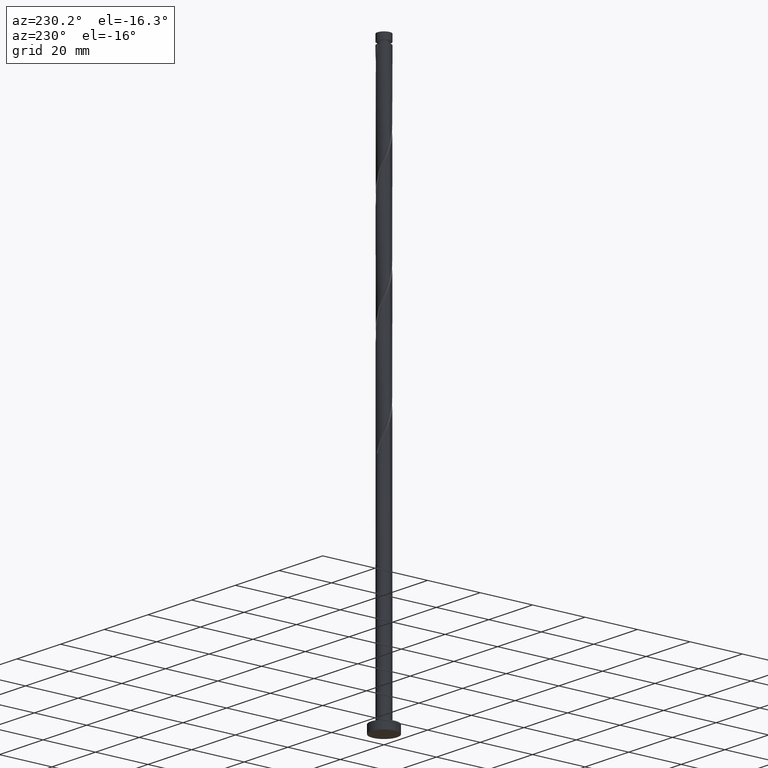
[diagram: clean part render]
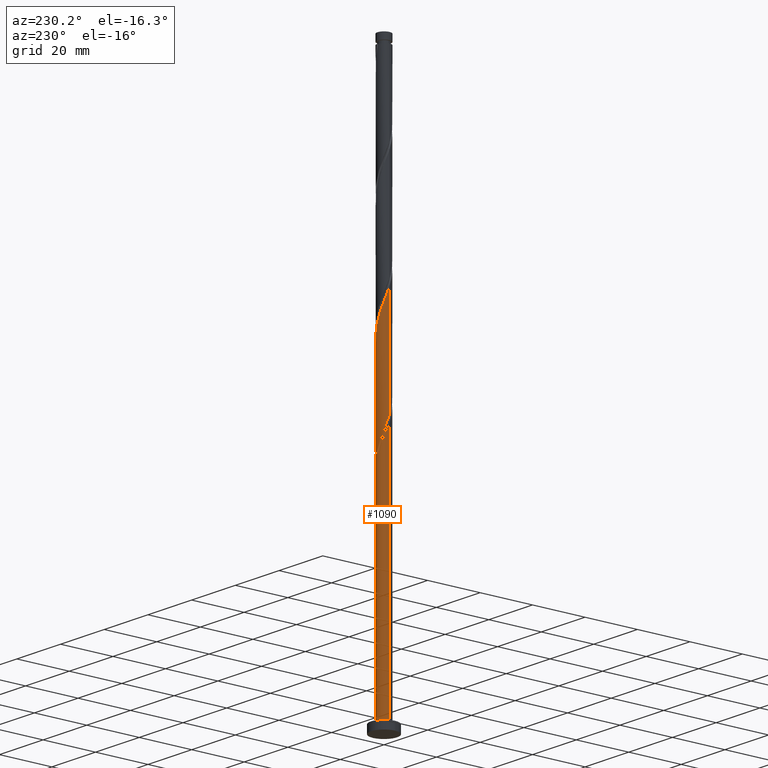
[diagram: same view with one face highlighted and labeled with its STEP entity id]
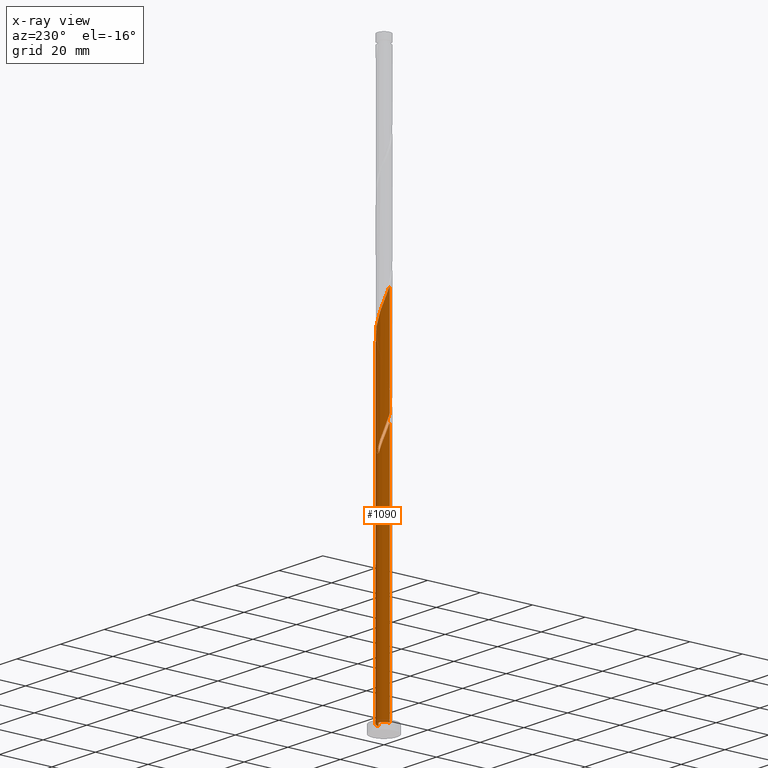
[diagram: x-ray of the same camera — body ghosted, the highlighted face saturated]
A machine part, auxiliary view. The second image highlights one B-rep face of the part: STEP entity #1090.
The next image is the same camera in x-ray: the body ghosted, the highlighted face saturated — about 0% of this face is hidden behind the body in this view.
In plain terms, the highlighted cylindrical surface (edge-blend (fillet) strip) has radius 2.5 mm, axis along (-0, -0, -1).
Its self-contained STEP definition (entity closure, byte-faithful):
#38 = CARTESIAN_POINT ( 'NONE',  ( -2.500000000000000000, 0.000000000000000000, 213.8100000000000023 ) ) ;
#48 = EDGE_CURVE ( 'NONE', #545, #1415, #388, .T. ) ;
#55 = CARTESIAN_POINT ( 'NONE',  ( -1.997029908174711599, 1.503951975914030292, 131.7754122369871368 ) ) ;
#78 = ORIENTED_EDGE ( 'NONE', *, *, #1500, .F. ) ;
#86 = VERTEX_POINT ( 'NONE', #677 ) ;
#96 = DIRECTION ( 'NONE',  ( -0.000000000000000000, -0.000000000000000000, -1.000000000000000000 ) ) ;
#111 = CARTESIAN_POINT ( 'NONE',  ( 2.500000000000000000, 3.061616997868383141E-16, 213.8100000000000023 ) ) ;
#185 = LINE ( 'NONE', #38, #742 ) ;
#191 = CARTESIAN_POINT ( 'NONE',  ( 1.733701828209132989, 1.801187933244147610, 120.5574635190383503 ) ) ;
#194 = ORIENTED_EDGE ( 'NONE', *, *, #845, .F. ) ;
#219 = CARTESIAN_POINT ( 'NONE',  ( 1.514998017198625702, 2.011697447541358930, 121.3587455703204512 ) ) ;
#221 = CYLINDRICAL_SURFACE ( 'NONE', #1386, 2.500000000000000000 ) ;
#228 = CARTESIAN_POINT ( 'NONE',  ( 2.500000000000003553, 0.09943282584191580342, 115.4873023023692014 ) ) ;
#243 = CARTESIAN_POINT ( 'NONE',  ( 0.4974937185533120365, 2.450000000000000178, 85.30105326262813037 ) ) ;
#257 = CARTESIAN_POINT ( 'NONE',  ( -0.9895442172117500101, 2.315803932707376944, 89.30746351903837876 ) ) ;
#272 = CARTESIAN_POINT ( 'NONE',  ( 0.000000000000000000, 0.000000000000000000, 3.000000000000000000 ) ) ;
#275 = CARTESIAN_POINT ( 'NONE',  ( 0.2000098596587730204, 2.510406673947360279, 86.10233531391018857 ) ) ;
#317 = CARTESIAN_POINT ( 'NONE',  ( 0.4974937185533120365, 2.450000000000000178, 85.30105326262813037 ) ) ;
#328 = CARTESIAN_POINT ( 'NONE',  ( 0.000000000000000000, 0.000000000000000000, 85.30105326262813037 ) ) ;
#334 = CARTESIAN_POINT ( 'NONE',  ( -1.814417076588193956, 1.746435307918773105, 130.9741301857050644 ) ) ;
#338 = VECTOR ( 'NONE', #1514, 1000.000000000000000 ) ;
#343 = CARTESIAN_POINT ( 'NONE',  ( -2.418195489578345292, 0.7031900075677495199, 134.1792583908332972 ) ) ;
#351 = CARTESIAN_POINT ( 'NONE',  ( 2.467994458320926565, 0.5011476491587921744, 116.5510532626281446 ) ) ;
#361 = CARTESIAN_POINT ( 'NONE',  ( -0.4974937185533109263, 2.450000000000001954, 126.9677199292947591 ) ) ;
#363 = CARTESIAN_POINT ( 'NONE',  ( -0.7949775774478503587, 2.389593326052643185, 86.10233531391018857 ) ) ;
#375 = CARTESIAN_POINT ( 'NONE',  ( 2.500000000000003109, 1.353512437262433092E-15, 115.2231313867362701 ) ) ;
#388 = LINE ( 'NONE', #111, #338 ) ;
#396 = ORIENTED_EDGE ( 'NONE', *, *, #48, .T. ) ;
#474 = CARTESIAN_POINT ( 'NONE',  ( -2.500000000000004885, 0.2031410963426116267, 135.5167639827213009 ) ) ;
#483 = CARTESIAN_POINT ( 'NONE',  ( 2.500000000000003109, 1.353512437262433289E-15, 115.2231313867362701 ) ) ;
#486 = CARTESIAN_POINT ( 'NONE',  ( -2.500000000000003109, -8.637054502972983423E-15, 136.0564647200696413 ) ) ;
#495 = DIRECTION ( 'NONE',  ( -1.000000000000000000, 0.000000000000000000, 0.000000000000000000 ) ) ;
#497 = DIRECTION ( 'NONE',  ( -0.000000000000000000, -0.000000000000000000, -1.000000000000000000 ) ) ;
#501 = CARTESIAN_POINT ( 'NONE',  ( 2.500000000000000000, 3.061616997868383141E-16, 3.000000000000000000 ) ) ;
#508 =( BOUNDED_CURVE ( )  B_SPLINE_CURVE ( 2, ( #483, #228, #780, #351, #939, #1778, #1758, #1045, #191, #219, #1768, #1063, #1212, #662, #1629, #1360, #361, #1186, #900, #1320, #1493, #334, #55, #789, #1348, #343, #1601, #474, #912 ),
 .UNSPECIFIED., .F., .T. ) 
 B_SPLINE_CURVE_WITH_KNOTS ( ( 3, 2, 2, 2, 2, 2, 2, 2, 2, 2, 2, 2, 2, 2, 3 ),
 ( 0.1795271625973831608, 0.1826923076923077094, 0.1923076923076922906, 0.2019230769230768718, 0.2115384615384615641, 0.2211538461538461453, 0.2307692307692307265, 0.2403846153846154188, 0.2500000000000000000, 0.2596153846153845812, 0.2692307692307692735, 0.2788461538461538547, 0.2884615384615384359, 0.2980769230769231282, 0.3045271625973833829 ),
 .UNSPECIFIED. ) 
 CURVE ( )  GEOMETRIC_REPRESENTATION_ITEM ( )  RATIONAL_B_SPLINE_CURVE ( ( 0.9061636035682910650, 0.9069090390690797143, 0.9090909090909364831, 0.9024626128164396910, 0.9090909090909364831, 0.9024626128164396910, 0.9090909090909364831, 0.9024626128164396910, 0.9090909090909364831, 0.9024626128164396910, 0.9090909090909364831, 0.9024626128164396910, 0.9090909090909364831, 0.9024626128164396910, 0.9090909090909364831, 0.9024626128164396910, 0.9090909090909364831, 0.9024626128164396910, 0.9090909090909364831, 0.9024626128164396910, 0.9090909090909364831, 0.9024626128164396910, 0.9090909090909364831, 0.9024626128164396910, 0.9090909090909364831, 0.9024626128164396910, 0.9090909090909364831, 0.9046444828382962378, 0.9061636035682911761 ) ) 
 REPRESENTATION_ITEM ( '' )  );
#516 = CARTESIAN_POINT ( 'NONE',  ( -1.069360832754713719, 2.259749412959357162, 86.90361736519223257 ) ) ;
#544 = EDGE_CURVE ( 'NONE', #86, #1613, #1625, .T. ) ;
#545 = VERTEX_POINT ( 'NONE', #375 ) ;
#568 = ORIENTED_EDGE ( 'NONE', *, *, #1667, .T. ) ;
#662 = CARTESIAN_POINT ( 'NONE',  ( 0.4065817041674140153, 2.485324310909244883, 124.5638737754486414 ) ) ;
#676 = VERTEX_POINT ( 'NONE', #317 ) ;
#677 = CARTESIAN_POINT ( 'NONE',  ( -2.500000000000002665, 5.301880210050082454E-15, 94.38979805340289886 ) ) ;
#679 = CARTESIAN_POINT ( 'NONE',  ( -2.500000000000000000, 0.09943282584192589257, 96.78147088955371657 ) ) ;
#680 = AXIS2_PLACEMENT_3D ( 'NONE', #328, #1572, #1742 ) ;
#687 = VERTEX_POINT ( 'NONE', #1180 ) ;
#710 = EDGE_CURVE ( 'NONE', #1321, #676, #1032, .T. ) ;
#731 = DIRECTION ( 'NONE',  ( -0.000000000000000000, -0.000000000000000000, -1.000000000000000000 ) ) ;
#742 = VECTOR ( 'NONE', #731, 1000.000000000000000 ) ;
#780 = CARTESIAN_POINT ( 'NONE',  ( 2.492102982822526958, 0.1985515625903690184, 115.7497712113460580 ) ) ;
#789 = CARTESIAN_POINT ( 'NONE',  ( -2.179642739761231240, 1.261468643909288145, 132.5766942882691808 ) ) ;
#791 = CARTESIAN_POINT ( 'NONE',  ( 0.000000000000000000, 0.000000000000000000, 213.8100000000000023 ) ) ;
#802 = CARTESIAN_POINT ( 'NONE',  ( -1.997029908174711599, 1.503951975914030292, 90.10874557032042276 ) ) ;
#819 = CARTESIAN_POINT ( 'NONE',  ( -2.492102982822524293, 0.1985515625903708781, 96.51900198057687419 ) ) ;
#845 = EDGE_CURVE ( 'NONE', #1124, #687, #185, .T. ) ;
#900 = CARTESIAN_POINT ( 'NONE',  ( -1.069360832754713719, 2.259749412959357162, 128.5702840318588471 ) ) ;
#912 = CARTESIAN_POINT ( 'NONE',  ( -2.500000000000003109, -8.637054502972983423E-15, 136.0564647200696413 ) ) ;
#921 = CARTESIAN_POINT ( 'NONE',  ( -2.500000000000000000, 0.000000000000000000, 3.000000000000000000 ) ) ;
#934 = CARTESIAN_POINT ( 'NONE',  ( -0.4974937185533110373, 2.450000000000003286, 85.30105326262813037 ) ) ;
#939 = CARTESIAN_POINT ( 'NONE',  ( 2.372170500257943182, 0.7891812958414519130, 117.3523353139101459 ) ) ;
#1002 = CARTESIAN_POINT ( 'NONE',  ( -0.4974937185533110373, 2.450000000000003286, 85.30105326262813037 ) ) ;
#1027 = ORIENTED_EDGE ( 'NONE', *, *, #1043, .F. ) ;
#1032 = CIRCLE ( 'NONE', #680, 2.500000000000000000 ) ;
#1043 = EDGE_CURVE ( 'NONE', #1321, #86, #1375, .T. ) ;
#1045 = CARTESIAN_POINT ( 'NONE',  ( 1.952405639219643385, 1.590678418946935624, 119.7561814677563490 ) ) ;
#1063 = CARTESIAN_POINT ( 'NONE',  ( 0.9895442172117524526, 2.315803932707379165, 122.9613096728845534 ) ) ;
#1066 = CARTESIAN_POINT ( 'NONE',  ( -1.579080582324886128, 1.938170403892422122, 88.50618146775632056 ) ) ;
#1067 = ORIENTED_EDGE ( 'NONE', *, *, #1245, .F. ) ;
#1076 = CARTESIAN_POINT ( 'NONE',  ( -2.298919114669788488, 0.9823293257385184996, 91.71130967288452496 ) ) ;
#1090 = ADVANCED_FACE ( 'NONE', ( #1214 ), #221, .T. ) ;
#1096 = CARTESIAN_POINT ( 'NONE',  ( -0.1032859222543195260, 2.497865492428299916, 86.90361736519227520 ) ) ;
#1111 = CARTESIAN_POINT ( 'NONE',  ( -1.952405639219638500, 1.590678418946935180, 92.51259172416659737 ) ) ;
#1124 = VERTEX_POINT ( 'NONE', #486 ) ;
#1131 = CARTESIAN_POINT ( 'NONE',  ( -2.372170500257940073, 0.7891812958414539114, 94.91643787801277199 ) ) ;
#1180 = CARTESIAN_POINT ( 'NONE',  ( -2.500000000000000000, 2.624767212591805226E-15, 97.04564180518667627 ) ) ;
#1186 = CARTESIAN_POINT ( 'NONE',  ( -0.7949775774478503587, 2.389593326052643185, 127.7690019805768316 ) ) ;
#1197 = CARTESIAN_POINT ( 'NONE',  ( -1.343744088061578745, 2.129905499866072471, 87.70489941647430499 ) ) ;
#1212 = CARTESIAN_POINT ( 'NONE',  ( 0.6980629606895842887, 2.400564121808310691, 123.7625917241665690 ) ) ;
#1214 = FACE_OUTER_BOUND ( 'NONE', #1247, .T. ) ;
#1245 = EDGE_CURVE ( 'NONE', #687, #676, #1565, .T. ) ;
#1247 = EDGE_LOOP ( 'NONE', ( #78, #396, #568, #1447, #1027, #1710, #1067, #194 ) ) ;
#1249 = CARTESIAN_POINT ( 'NONE',  ( -2.500000000000000444, 2.624767212591805226E-15, 97.04564180518667627 ) ) ;
#1271 = CARTESIAN_POINT ( 'NONE',  ( -2.114376090707298150, 1.333946680735525359, 93.31387377544862716 ) ) ;
#1320 = CARTESIAN_POINT ( 'NONE',  ( -1.343744088061578745, 2.129905499866072471, 129.3715660831409480 ) ) ;
#1321 = VERTEX_POINT ( 'NONE', #1002 ) ;
#1333 = CARTESIAN_POINT ( 'NONE',  ( -1.814417076588193956, 1.746435307918773105, 89.30746351903837876 ) ) ;
#1348 = CARTESIAN_POINT ( 'NONE',  ( -2.298919114669788488, 0.9823293257385184996, 133.3779763395511679 ) ) ;
#1360 = CARTESIAN_POINT ( 'NONE',  ( -0.2000098596587715771, 2.510406673947364276, 126.1664378780127720 ) ) ;
#1375 =( BOUNDED_CURVE ( )  B_SPLINE_CURVE ( 2, ( #934, #363, #516, #1197, #1066, #1333, #802, #1622, #1076, #1752, #1488, #1631, #1761 ),
 .UNSPECIFIED., .F., .T. ) 
 B_SPLINE_CURVE_WITH_KNOTS ( ( 3, 2, 2, 2, 2, 2, 3 ),
 ( 0.000000000000000000, 0.009615384615384581224, 0.01923076923076927347, 0.02884615384615385469, 0.03846153846153843592, 0.04807692307692312816, 0.05452716259738315391 ),
 .UNSPECIFIED. ) 
 CURVE ( )  GEOMETRIC_REPRESENTATION_ITEM ( )  RATIONAL_B_SPLINE_CURVE ( ( 0.9090909090909364831, 0.9024626128164396910, 0.9090909090909364831, 0.9024626128164396910, 0.9090909090909364831, 0.9024626128164396910, 0.9090909090909364831, 0.9024626128164396910, 0.9090909090909364831, 0.9024626128164396910, 0.9090909090909364831, 0.9046444828382964598, 0.9061636035682911761 ) ) 
 REPRESENTATION_ITEM ( '' )  );
#1382 = CARTESIAN_POINT ( 'NONE',  ( -1.514998017198621261, 2.011697447541358486, 90.91002762160245254 ) ) ;
#1386 = AXIS2_PLACEMENT_3D ( 'NONE', #791, #96, #495 ) ;
#1392 = CARTESIAN_POINT ( 'NONE',  ( -0.6980629606895811801, 2.400564121808308471, 88.50618146775634898 ) ) ;
#1415 = VERTEX_POINT ( 'NONE', #501 ) ;
#1447 = ORIENTED_EDGE ( 'NONE', *, *, #544, .F. ) ;
#1451 = CIRCLE ( 'NONE', #1511, 2.500000000000000000 ) ;
#1488 = CARTESIAN_POINT ( 'NONE',  ( -2.467203498451236765, 0.4036172657729010793, 93.31387377544862716 ) ) ;
#1493 = CARTESIAN_POINT ( 'NONE',  ( -1.579080582324886128, 1.938170403892422122, 130.1728481344229920 ) ) ;
#1500 = EDGE_CURVE ( 'NONE', #545, #1124, #508, .T. ) ;
#1508 = VECTOR ( 'NONE', #497, 1000.000000000000000 ) ;
#1511 = AXIS2_PLACEMENT_3D ( 'NONE', #272, #1529, #1664 ) ;
#1514 = DIRECTION ( 'NONE',  ( -0.000000000000000000, -0.000000000000000000, -1.000000000000000000 ) ) ;
#1516 = CARTESIAN_POINT ( 'NONE',  ( -1.252271117205185469, 2.163750690124368159, 90.10874557032045118 ) ) ;
#1518 = CARTESIAN_POINT ( 'NONE',  ( -2.500000000000000000, 0.000000000000000000, 213.8100000000000023 ) ) ;
#1529 = DIRECTION ( 'NONE',  ( 0.000000000000000000, 0.000000000000000000, 1.000000000000000000 ) ) ;
#1532 = CARTESIAN_POINT ( 'NONE',  ( -2.276346542194957134, 1.077214942524114649, 94.11515582673068536 ) ) ;
#1565 =( BOUNDED_CURVE ( )  B_SPLINE_CURVE ( 2, ( #1249, #679, #819, #1686, #1131, #1532, #1271, #1111, #1694, #1382, #1516, #257, #1392, #1808, #1096, #275, #243 ),
 .UNSPECIFIED., .F., .T. ) 
 B_SPLINE_CURVE_WITH_KNOTS ( ( 3, 2, 2, 2, 2, 2, 2, 2, 3 ),
 ( 0.9295271625973834384, 0.9326923076923077094, 0.9423076923076922906, 0.9519230769230768718, 0.9615384615384615641, 0.9711538461538461453, 0.9807692307692307265, 0.9903846153846154188, 1.000000000000000000 ),
 .UNSPECIFIED. ) 
 CURVE ( )  GEOMETRIC_REPRESENTATION_ITEM ( )  RATIONAL_B_SPLINE_CURVE ( ( 0.9061636035682858470, 0.9069090390690746073, 0.9090909090909310430, 0.9024626128164345840, 0.9090909090909310430, 0.9024626128164345840, 0.9090909090909310430, 0.9024626128164345840, 0.9090909090909310430, 0.9024626128164345840, 0.9090909090909310430, 0.9024626128164345840, 0.9090909090909310430, 0.9024626128164345840, 0.9090909090909310430, 0.9024626128164345840, 0.9090909090909310430 ) ) 
 REPRESENTATION_ITEM ( '' )  );
#1572 = DIRECTION ( 'NONE',  ( 0.000000000000000000, -0.000000000000000000, -1.000000000000000000 ) ) ;
#1601 = CARTESIAN_POINT ( 'NONE',  ( -2.467203498451236765, 0.4036172657729010793, 134.9805404421153128 ) ) ;
#1613 = VERTEX_POINT ( 'NONE', #921 ) ;
#1622 = CARTESIAN_POINT ( 'NONE',  ( -2.179642739761231240, 1.261468643909288145, 90.91002762160249517 ) ) ;
#1625 = LINE ( 'NONE', #1518, #1508 ) ;
#1629 = CARTESIAN_POINT ( 'NONE',  ( 0.1032859222543222460, 2.497865492428302137, 125.3651558267306569 ) ) ;
#1631 = CARTESIAN_POINT ( 'NONE',  ( -2.500000000000002665, 0.2031410963426187877, 93.85009731605460104 ) ) ;
#1664 = DIRECTION ( 'NONE',  ( 1.000000000000000000, 0.000000000000000000, 0.000000000000000000 ) ) ;
#1667 = EDGE_CURVE ( 'NONE', #1415, #1613, #1451, .T. ) ;
#1686 = CARTESIAN_POINT ( 'NONE',  ( -2.467994458320922568, 0.5011476491587923965, 95.71771992929477335 ) ) ;
#1694 = CARTESIAN_POINT ( 'NONE',  ( -1.733701828209130325, 1.801187933244147166, 91.71130967288455338 ) ) ;
#1710 = ORIENTED_EDGE ( 'NONE', *, *, #710, .T. ) ;
#1742 = DIRECTION ( 'NONE',  ( -1.000000000000000000, 0.000000000000000000, 0.000000000000000000 ) ) ;
#1752 = CARTESIAN_POINT ( 'NONE',  ( -2.418195489578345292, 0.7031900075677495199, 92.51259172416661158 ) ) ;
#1758 = CARTESIAN_POINT ( 'NONE',  ( 2.114376090707300815, 1.333946680735525581, 118.9548994164742624 ) ) ;
#1761 = CARTESIAN_POINT ( 'NONE',  ( -2.500000000000002665, 5.301880210050082454E-15, 94.38979805340289886 ) ) ;
#1768 = CARTESIAN_POINT ( 'NONE',  ( 1.252271117205188355, 2.163750690124368603, 122.1600276216024668 ) ) ;
#1778 = CARTESIAN_POINT ( 'NONE',  ( 2.276346542194961131, 1.077214942524114205, 118.1536173651922468 ) ) ;
#1808 = CARTESIAN_POINT ( 'NONE',  ( -0.4065817041674119614, 2.485324310909241330, 87.70489941647430499 ) ) ;